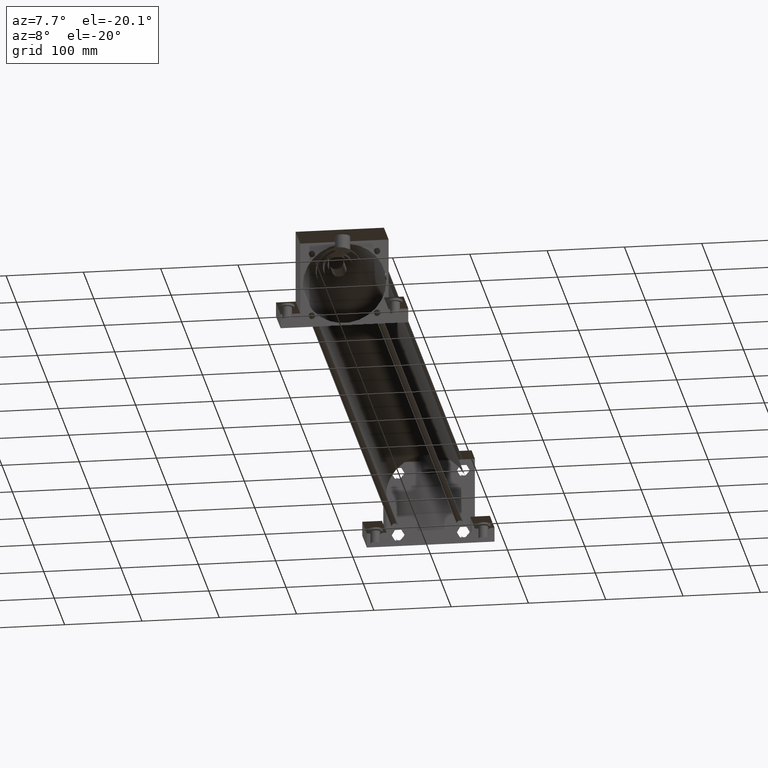
[diagram: clean part render]
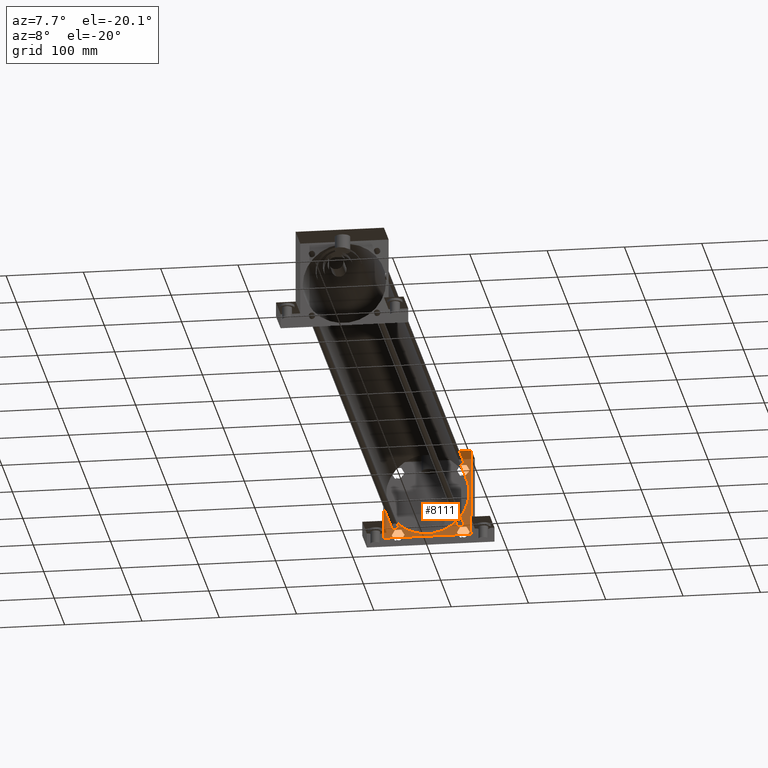
[diagram: same view with one face highlighted and labeled with its STEP entity id]
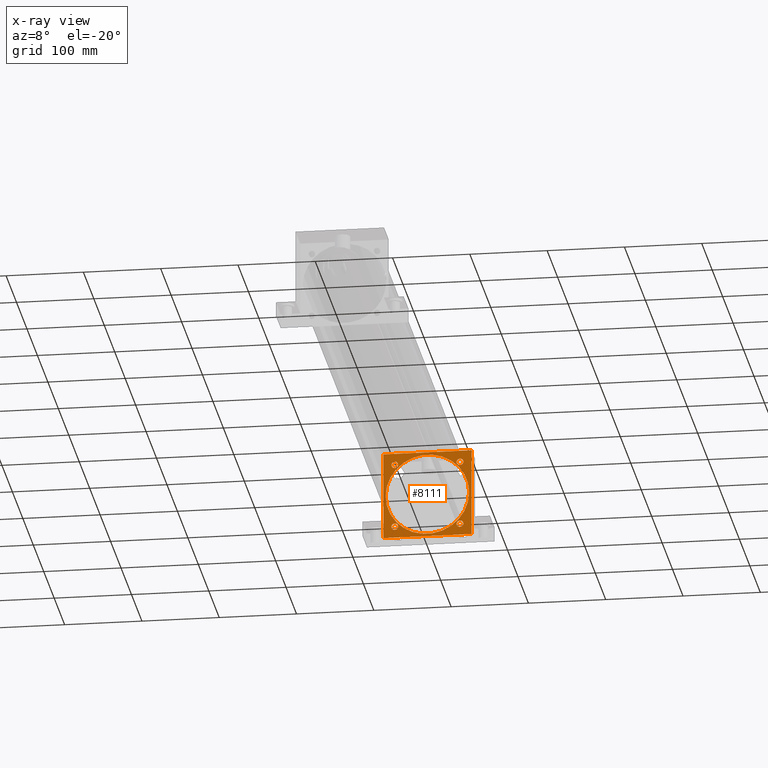
[diagram: x-ray of the same camera — body ghosted, the highlighted face saturated]
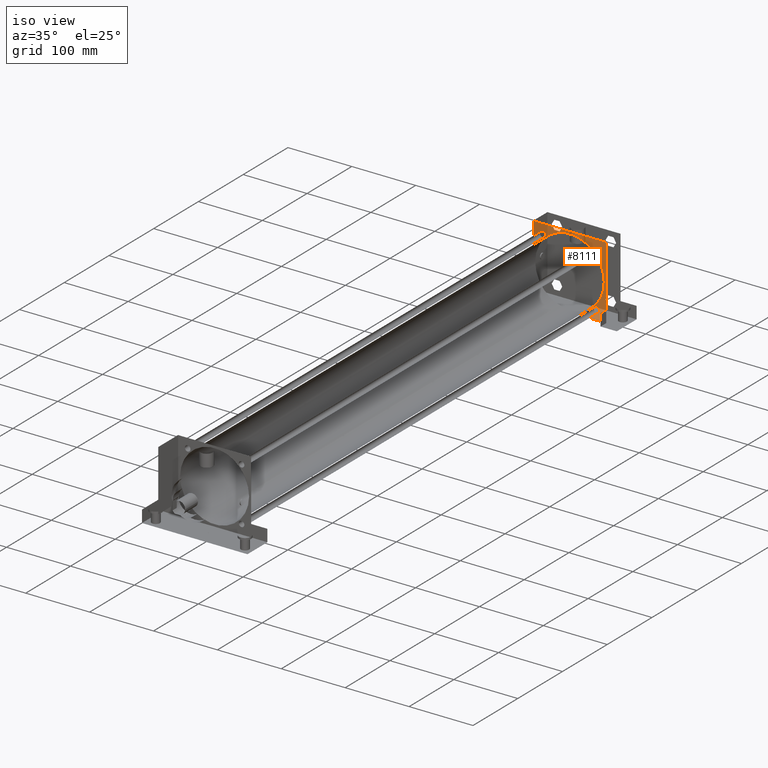
[diagram: same view with one face highlighted and labeled with its STEP entity id]
A machine part, auxiliary view. The second image highlights one B-rep face of the part: STEP entity #8111.
The next image is the same camera in x-ray: the body ghosted, the highlighted face saturated — about 2% of this face is hidden behind the body in this view.
A second angle (iso view) of the same face is appended — the face is thin or edge-on in the first view.
In plain terms, the highlighted planar face has unit normal (0, -1, 0).
Its self-contained STEP definition (entity closure, byte-faithful):
#1125=EDGE_CURVE('',#1131,#1131,#1126,.T.);
#1126=CIRCLE('',#1127,5.397500000E+001);
#1127=AXIS2_PLACEMENT_3D('',#1128,#1129,#1130);
#1128=CARTESIAN_POINT('',(0.000000000E+000,8.731250000E+002,0.000000000E+000));
#1129=DIRECTION('',(0.0E+000,1.0E+000,0.0E+000));
#1130=DIRECTION('',(1.0E+000,0.0E+000,0.0E+000));
#1131=VERTEX_POINT('',#1132);
#1132=CARTESIAN_POINT('',(5.397500000E+001,8.731250000E+002,0.000000000E+000));
#1207=EDGE_CURVE('',#1213,#1213,#1208,.T.);
#1208=CIRCLE('',#1209,4.381500000E+000);
#1209=AXIS2_PLACEMENT_3D('',#1210,#1211,#1212);
#1210=CARTESIAN_POINT('',(4.216400000E+001,8.731250000E+002,4.216400000E+001));
#1211=DIRECTION('',(0.0E+000,-1.0E+000,0.0E+000));
#1212=DIRECTION('',(-1.0E+000,0.0E+000,0.0E+000));
#1213=VERTEX_POINT('',#1214);
#1214=CARTESIAN_POINT('',(3.778250000E+001,8.731250000E+002,4.216400000E+001));
#1215=EDGE_CURVE('',#1221,#1221,#1216,.T.);
#1216=CIRCLE('',#1217,4.381500000E+000);
#1217=AXIS2_PLACEMENT_3D('',#1218,#1219,#1220);
#1218=CARTESIAN_POINT('',(-4.216400000E+001,8.731250000E+002,-4.216400000E+001));
#1219=DIRECTION('',(0.0E+000,1.0E+000,0.0E+000));
#1220=DIRECTION('',(1.0E+000,0.0E+000,0.0E+000));
#1221=VERTEX_POINT('',#1222);
#1222=CARTESIAN_POINT('',(-3.778250000E+001,8.731250000E+002,-4.216400000E+001));
#1231=EDGE_CURVE('',#1237,#1237,#1232,.T.);
#1232=CIRCLE('',#1233,4.381500000E+000);
#1233=AXIS2_PLACEMENT_3D('',#1234,#1235,#1236);
#1234=CARTESIAN_POINT('',(4.216400000E+001,8.731250000E+002,-4.216400000E+001));
#1235=DIRECTION('',(0.0E+000,1.0E+000,0.0E+000));
#1236=DIRECTION('',(1.0E+000,0.0E+000,0.0E+000));
#1237=VERTEX_POINT('',#1238);
#1238=CARTESIAN_POINT('',(4.654550000E+001,8.731250000E+002,-4.216400000E+001));
#1247=EDGE_CURVE('',#1253,#1253,#1248,.T.);
#1248=CIRCLE('',#1249,4.381500000E+000);
#1249=AXIS2_PLACEMENT_3D('',#1250,#1251,#1252);
#1250=CARTESIAN_POINT('',(-4.216400000E+001,8.731250000E+002,4.216400000E+001));
#1251=DIRECTION('',(0.0E+000,1.0E+000,0.0E+000));
#1252=DIRECTION('',(1.0E+000,0.0E+000,0.0E+000));
#1253=VERTEX_POINT('',#1254);
#1254=CARTESIAN_POINT('',(-3.778250000E+001,8.731250000E+002,4.216400000E+001));
#3458=VERTEX_POINT('',#3460);
#3460=CARTESIAN_POINT('',(-5.715000000E+001,8.731250000E+002,-5.715000000E+001));
#3498=VERTEX_POINT('',#3499);
#3499=CARTESIAN_POINT('',(5.715000000E+001,8.731250000E+002,-5.715000000E+001));
#3500=EDGE_CURVE('',#3498,#3458,#3501,.T.);
#3501=LINE('',#3502,#3503);
#3502=CARTESIAN_POINT('',(5.715000000E+001,8.731250000E+002,-5.715000000E+001));
#3503=VECTOR('',#3504,1.0E+000);
#3504=DIRECTION('',(-1.0E+000,0.0E+000,0.0E+000));
#3526=VERTEX_POINT('',#3528);
#3528=CARTESIAN_POINT('',(5.715000000E+001,8.731250000E+002,-3.810000000E+001));
#3599=EDGE_CURVE('',#3498,#3526,#3600,.T.);
#3600=LINE('',#3601,#3602);
#3601=CARTESIAN_POINT('',(5.715000000E+001,8.731250000E+002,-5.715000000E+001));
#3602=VECTOR('',#3603,1.0E+000);
#3603=DIRECTION('',(0.0E+000,0.0E+000,1.0E+000));
#3625=VERTEX_POINT('',#3627);
#3627=CARTESIAN_POINT('',(-5.715000000E+001,8.731250000E+002,-3.810000000E+001));
#3698=EDGE_CURVE('',#3625,#3458,#3699,.T.);
#3699=LINE('',#3700,#3701);
#3700=CARTESIAN_POINT('',(-5.715000000E+001,8.731250000E+002,5.715000000E+001));
#3701=VECTOR('',#3702,1.0E+000);
#3702=DIRECTION('',(0.0E+000,0.0E+000,-1.0E+000));
#3788=VERTEX_POINT('',#3789);
#3789=CARTESIAN_POINT('',(-5.715000000E+001,8.731250000E+002,5.715000000E+001));
#3790=EDGE_CURVE('',#3795,#3788,#3791,.T.);
#3791=LINE('',#3792,#3793);
#3792=CARTESIAN_POINT('',(5.715000000E+001,8.731250000E+002,5.715000000E+001));
#3793=VECTOR('',#3794,1.0E+000);
#3794=DIRECTION('',(-1.0E+000,0.0E+000,0.0E+000));
#3795=VERTEX_POINT('',#3796);
#3796=CARTESIAN_POINT('',(5.715000000E+001,8.731250000E+002,5.715000000E+001));
#3816=EDGE_CURVE('',#3526,#3795,#3600,.T.);
#3831=EDGE_CURVE('',#3788,#3625,#3699,.T.);
#3837=FACE_OUTER_BOUND('',#3843,.T.);
#3838=FACE_BOUND('',#3844,.T.);
#3839=FACE_BOUND('',#3845,.T.);
#3840=FACE_BOUND('',#3846,.T.);
#3841=FACE_BOUND('',#3847,.T.);
#3842=FACE_BOUND('',#3848,.T.);
#3843=EDGE_LOOP('',(#3849));
#3844=EDGE_LOOP('',(#3850));
#3845=EDGE_LOOP('',(#3851,#3852,#3853,#3854,#3855,#3856));
#3846=EDGE_LOOP('',(#3857));
#3847=EDGE_LOOP('',(#3858));
#3848=EDGE_LOOP('',(#3859));
#3849=ORIENTED_EDGE('',*,*,#1247,.T.);
#3850=ORIENTED_EDGE('',*,*,#1207,.T.);
#3851=ORIENTED_EDGE('',*,*,#3500,.F.);
#3852=ORIENTED_EDGE('',*,*,#3599,.T.);
#3853=ORIENTED_EDGE('',*,*,#3816,.T.);
#3854=ORIENTED_EDGE('',*,*,#3790,.T.);
#3855=ORIENTED_EDGE('',*,*,#3831,.T.);
#3856=ORIENTED_EDGE('',*,*,#3698,.T.);
#3857=ORIENTED_EDGE('',*,*,#1215,.T.);
#3858=ORIENTED_EDGE('',*,*,#1231,.T.);
#3859=ORIENTED_EDGE('',*,*,#1125,.T.);
#3868=PLANE('',#3869);
#3869=AXIS2_PLACEMENT_3D('',#3870,#3871,#3872);
#3870=CARTESIAN_POINT('',(5.715000000E+001,8.731250000E+002,-5.715000000E+001));
#3871=DIRECTION('',(0.0E+000,-1.0E+000,0.0E+000));
#3872=DIRECTION('',(0.0E+000,0.0E+000,-1.0E+000));
#8111=ADVANCED_FACE('',(#3837,#3838,#3839,#3840,#3841,#3842),#3868,.T.);